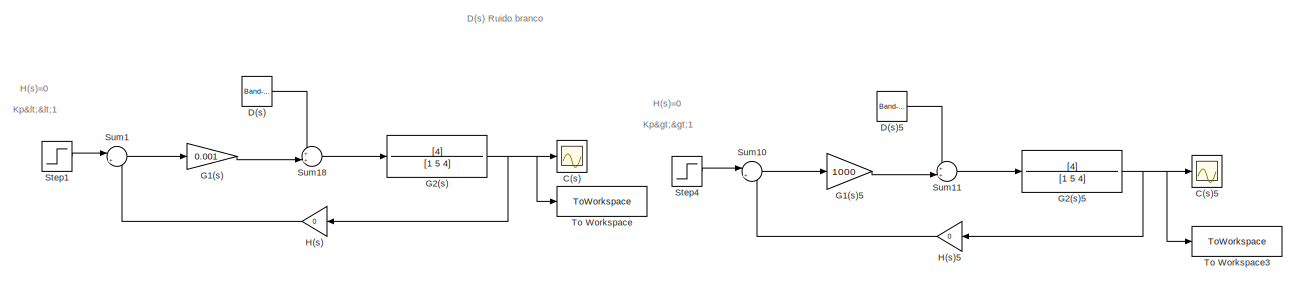
[diagram: root canvas - part 1/4, full width, top band]
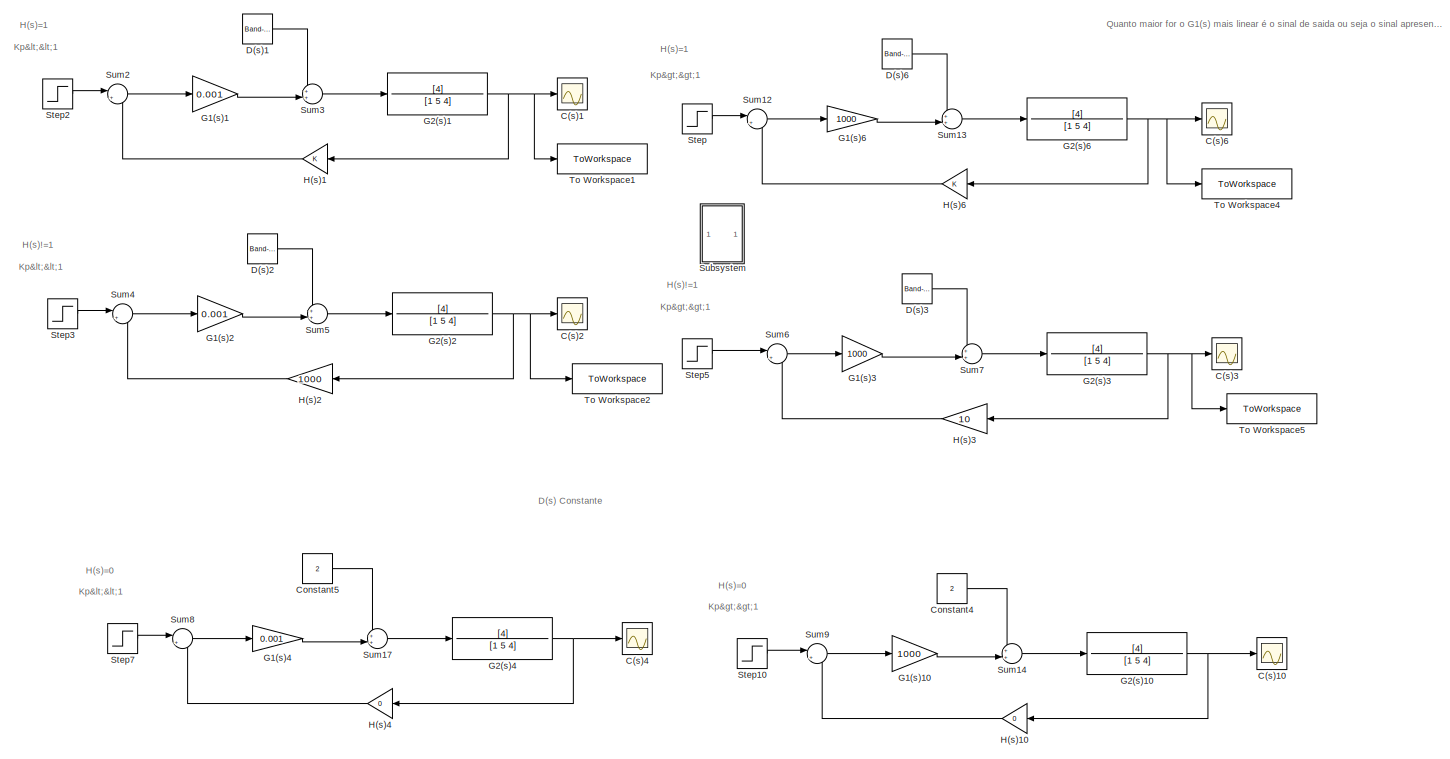
[diagram: root canvas - part 2/4, full width, top band]
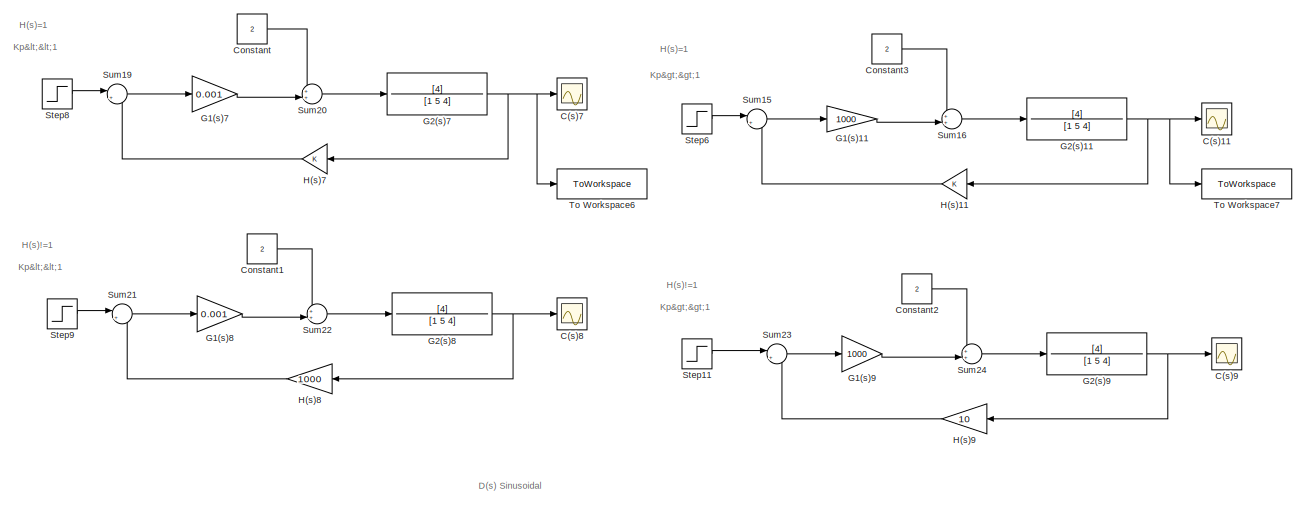
[diagram: root canvas - part 3/4, full width, middle band]
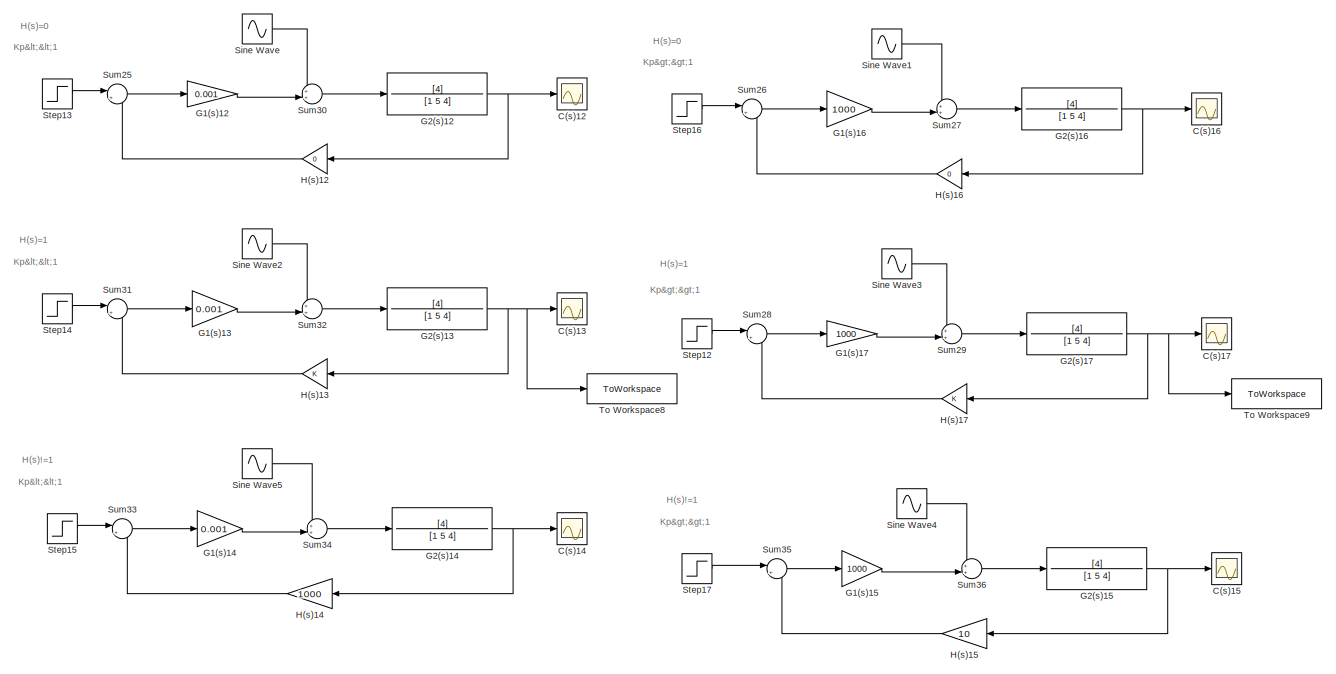
[diagram: root canvas - part 4/4, full width, bottom band]
MODEL slx_2957612d3b44
KIND model
CONFIG AbsTol = auto
CONFIG EnableMultiTasking = off
CONFIG FixedStep = auto
CONFIG MaxStep = auto
CONFIG MinStep = auto
CONFIG RelTol = 1e-3
CONFIG SampleTimeConstraint = Unconstrained
CONFIG SolverName = VariableStepAuto
CONFIG StartTime = 0.0
CONFIG StopTime = 10.0
BLOCK [Scope] C(s)
  Floating = off
  NumInputPorts = 1
  Ports = [1]
  ScopeSpecificationString = Simulink.scopes.TimeScopeBlockCfg('CurrentConfiguration', extmgr.ConfigurationSet(extmgr.Configuration('Core','General UI',true),extmgr.Configuration('Core','Source UI',true),extmgr.Configuration('Sources','WiredSimulink',true,'DataLoggingVariableName','ScopeData1'),extmgr.Configuration('Visuals','Time Domain',true,'SerializedDisplays',{struct('MinYLimReal','-0.19453','MaxYLimReal','0.15381','YLab...<+1397ch>
BLOCK [Scope] C(s)1
  Floating = off
  NumInputPorts = 1
  Ports = [1]
  ScopeSpecificationString = Simulink.scopes.TimeScopeBlockCfg('CurrentConfiguration', extmgr.ConfigurationSet(extmgr.Configuration('Core','General UI',true),extmgr.Configuration('Core','Source UI',true),extmgr.Configuration('Sources','WiredSimulink',true,'DataLoggingVariableName','ScopeData2'),extmgr.Configuration('Visuals','Time Domain',true,'SerializedDisplays',{struct('MinYLimReal','-0.11853','MaxYLimReal','0.07385','YLab...<+1394ch>
BLOCK [Scope] C(s)10
  Floating = off
  NumInputPorts = 1
  Ports = [1]
  ScopeSpecificationString = Simulink.scopes.TimeScopeBlockCfg('CurrentConfiguration', extmgr.ConfigurationSet(extmgr.Configuration('Core','General UI',true),extmgr.Configuration('Core','Source UI',true),extmgr.Configuration('Sources','WiredSimulink',true,'DataLoggingVariableName','ScopeData3'),extmgr.Configuration('Visuals','Time Domain',true,'SerializedDisplays',{struct('MinYLimReal','-125.23127','MaxYLimReal','1127.08139',...<+1411ch>
BLOCK [Scope] C(s)11
  Floating = off
  NumInputPorts = 1
  Ports = [1]
  ScopeSpecificationString = Simulink.scopes.TimeScopeBlockCfg('CurrentConfiguration', extmgr.ConfigurationSet(extmgr.Configuration('Core','General UI',true),extmgr.Configuration('Core','Source UI',true),extmgr.Configuration('Sources','WiredSimulink',true,'DataLoggingVariableName','ScopeData4'),extmgr.Configuration('Visuals','Time Domain',true,'SerializedDisplays',{struct('MinYLimReal','-0.23726','MaxYLimReal','2.13535','YLab...<+1395ch>
BLOCK [Scope] C(s)12
  Floating = off
  NumInputPorts = 1
  Ports = [1]
  ScopeSpecificationString = Simulink.scopes.TimeScopeBlockCfg('CurrentConfiguration', extmgr.ConfigurationSet(extmgr.Configuration('Core','General UI',true),extmgr.Configuration('Core','Source UI',true),extmgr.Configuration('Sources','WiredSimulink',true,'DataLoggingVariableName','ScopeData5'),extmgr.Configuration('Visuals','Time Domain',true,'SerializedDisplays',{struct('MinYLimReal','-0.41052','MaxYLimReal','0.54312','YLab...<+1393ch>
BLOCK [Scope] C(s)13
  Floating = off
  NumInputPorts = 1
  Ports = [1]
  ScopeSpecificationString = Simulink.scopes.TimeScopeBlockCfg('CurrentConfiguration', extmgr.ConfigurationSet(extmgr.Configuration('Core','General UI',true),extmgr.Configuration('Core','Source UI',true),extmgr.Configuration('Sources','WiredSimulink',true,'DataLoggingVariableName','ScopeData6'),extmgr.Configuration('Visuals','Time Domain',true,'SerializedDisplays',{struct('MinYLimReal','-0.41054','MaxYLimReal','0.54299','YLab...<+1395ch>
BLOCK [Scope] C(s)14
  Floating = off
  NumInputPorts = 1
  Ports = [1]
  ScopeSpecificationString = Simulink.scopes.TimeScopeBlockCfg('CurrentConfiguration', extmgr.ConfigurationSet(extmgr.Configuration('Core','General UI',true),extmgr.Configuration('Core','Source UI',true),extmgr.Configuration('Sources','WiredSimulink',true,'DataLoggingVariableName','ScopeData7'),extmgr.Configuration('Visuals','Time Domain',true,'SerializedDisplays',{struct('MinYLimReal','-0.01259','MaxYLimReal','0.11335','YLab...<+1439ch>
BLOCK [Scope] C(s)15
  Floating = off
  NumInputPorts = 1
  Ports = [1]
  ScopeSpecificationString = Simulink.scopes.TimeScopeBlockCfg('CurrentConfiguration', extmgr.ConfigurationSet(extmgr.Configuration('Core','General UI',true),extmgr.Configuration('Core','Source UI',true),extmgr.Configuration('Sources','WiredSimulink',true,'DataLoggingVariableName','ScopeData8'),extmgr.Configuration('Visuals','Time Domain',true,'SerializedDisplays',{struct('MinYLimReal','-0.01259','MaxYLimReal','0.11335','YLab...<+1439ch>
BLOCK [Scope] C(s)16
  Floating = off
  NumInputPorts = 1
  Ports = [1]
  ScopeSpecificationString = Simulink.scopes.TimeScopeBlockCfg('CurrentConfiguration', extmgr.ConfigurationSet(extmgr.Configuration('Core','General UI',true),extmgr.Configuration('Core','Source UI',true),extmgr.Configuration('Sources','WiredSimulink',true,'DataLoggingVariableName','ScopeData9'),extmgr.Configuration('Visuals','Time Domain',true,'SerializedDisplays',{struct('MinYLimReal','-124.95458','MaxYLimReal','1124.5912','...<+1407ch>
BLOCK [Scope] C(s)17
  Floating = off
  NumInputPorts = 1
  Ports = [1]
  ScopeSpecificationString = Simulink.scopes.TimeScopeBlockCfg('CurrentConfiguration', extmgr.ConfigurationSet(extmgr.Configuration('Core','General UI',true),extmgr.Configuration('Core','Source UI',true),extmgr.Configuration('Sources','WiredSimulink',true,'DataLoggingVariableName','ScopeData10'),extmgr.Configuration('Visuals','Time Domain',true,'SerializedDisplays',{struct('MinYLimReal','-0.23723','MaxYLimReal','2.13504','YLa...<+1396ch>
BLOCK [Scope] C(s)2
  Floating = off
  NumInputPorts = 1
  Ports = [1]
  ScopeSpecificationString = Simulink.scopes.TimeScopeBlockCfg('CurrentConfiguration', extmgr.ConfigurationSet(extmgr.Configuration('Core','General UI',true),extmgr.Configuration('Core','Source UI',true),extmgr.Configuration('Sources','WiredSimulink',true,'DataLoggingVariableName','ScopeData11'),extmgr.Configuration('Visuals','Time Domain',true,'SerializedDisplays',{struct('MinYLimReal','-0.01259','MaxYLimReal','0.11335','YLa...<+1439ch>
BLOCK [Scope] C(s)3
  Floating = off
  NumInputPorts = 1
  Ports = [1]
  ScopeSpecificationString = Simulink.scopes.TimeScopeBlockCfg('CurrentConfiguration', extmgr.ConfigurationSet(extmgr.Configuration('Core','General UI',true),extmgr.Configuration('Core','Source UI',true),extmgr.Configuration('Sources','WiredSimulink',true,'DataLoggingVariableName','ScopeData12'),extmgr.Configuration('Visuals','Time Domain',true,'SerializedDisplays',{struct('MinYLimReal','-0.01259','MaxYLimReal','0.11335','YLa...<+1439ch>
BLOCK [Scope] C(s)4
  Floating = off
  NumInputPorts = 1
  Ports = [1]
  ScopeSpecificationString = Simulink.scopes.TimeScopeBlockCfg('CurrentConfiguration', extmgr.ConfigurationSet(extmgr.Configuration('Core','General UI',true),extmgr.Configuration('Core','Source UI',true),extmgr.Configuration('Sources','WiredSimulink',true,'DataLoggingVariableName','ScopeData13'),extmgr.Configuration('Visuals','Time Domain',true,'SerializedDisplays',{struct('MinYLimReal','-0.2501','MaxYLimReal','2.25092','YLab...<+1391ch>
BLOCK [Scope] C(s)5
  Floating = off
  NumInputPorts = 1
  Ports = [1]
  ScopeSpecificationString = Simulink.scopes.TimeScopeBlockCfg('CurrentConfiguration', extmgr.ConfigurationSet(extmgr.Configuration('Core','General UI',true),extmgr.Configuration('Core','Source UI',true),extmgr.Configuration('Sources','WiredSimulink',true,'DataLoggingVariableName','ScopeData14'),extmgr.Configuration('Visuals','Time Domain',true,'SerializedDisplays',{struct('MinYLimReal','-124.96875','MaxYLimReal','1124.71875'...<+1411ch>
BLOCK [Scope] C(s)6
  Floating = off
  NumInputPorts = 1
  Ports = [1]
  ScopeSpecificationString = Simulink.scopes.TimeScopeBlockCfg('CurrentConfiguration', extmgr.ConfigurationSet(extmgr.Configuration('Core','General UI',true),extmgr.Configuration('Core','Source UI',true),extmgr.Configuration('Sources','WiredSimulink',true,'DataLoggingVariableName','ScopeData15'),extmgr.Configuration('Visuals','Time Domain',true,'SerializedDisplays',{struct('MinYLimReal','-0.23893','MaxYLimReal','2.13407','YLa...<+1395ch>
BLOCK [Scope] C(s)7
  Floating = off
  NumInputPorts = 1
  Ports = [1]
  ScopeSpecificationString = Simulink.scopes.TimeScopeBlockCfg('CurrentConfiguration', extmgr.ConfigurationSet(extmgr.Configuration('Core','General UI',true),extmgr.Configuration('Core','Source UI',true),extmgr.Configuration('Sources','WiredSimulink',true,'DataLoggingVariableName','ScopeData16'),extmgr.Configuration('Visuals','Time Domain',true,'SerializedDisplays',{struct('MinYLimReal','-0.24985','MaxYLimReal','2.24868','YLa...<+1395ch>
BLOCK [Scope] C(s)8
  Floating = off
  NumInputPorts = 1
  Ports = [1]
  ScopeSpecificationString = Simulink.scopes.TimeScopeBlockCfg('CurrentConfiguration', extmgr.ConfigurationSet(extmgr.Configuration('Core','General UI',true),extmgr.Configuration('Core','Source UI',true),extmgr.Configuration('Sources','WiredSimulink',true,'DataLoggingVariableName','ScopeData17'),extmgr.Configuration('Visuals','Time Domain',true,'SerializedDisplays',{struct('MinYLimReal','-0.01259','MaxYLimReal','0.11335','YLa...<+1439ch>
BLOCK [Scope] C(s)9
  Floating = off
  NumInputPorts = 1
  Ports = [1]
  ScopeSpecificationString = Simulink.scopes.TimeScopeBlockCfg('CurrentConfiguration', extmgr.ConfigurationSet(extmgr.Configuration('Core','General UI',true),extmgr.Configuration('Core','Source UI',true),extmgr.Configuration('Sources','WiredSimulink',true),extmgr.Configuration('Visuals','Time Domain',true,'SerializedDisplays',{struct('MinYLimReal','-0.01259','MaxYLimReal','0.11335','YLabelReal','','MinYLimMag','0.00000','MaxY...<+1399ch>
BLOCK [Constant] Constant
  Value = 2
BLOCK [Constant] Constant1
  Value = 2
BLOCK [Constant] Constant2
  Value = 2
BLOCK [Constant] Constant3
  Value = 2
BLOCK [Constant] Constant4
  Value = 2
BLOCK [Constant] Constant5
  Value = 2
BLOCK [Reference] D(s)  REF=simulink/Sources/Band-Limited
White Noise
  Ports = [0, 1]
  SourceBlock = simulink/Sources/Band-Limited\nWhite Noise
  SourceProductBaseCode = SL
  SourceType = Band-Limited White Noise.
BLOCK [Reference] D(s)1  REF=simulink/Sources/Band-Limited
White Noise
  Ports = [0, 1]
  SourceBlock = simulink/Sources/Band-Limited\nWhite Noise
  SourceProductBaseCode = SL
  SourceType = Band-Limited White Noise.
BLOCK [Reference] D(s)2  REF=simulink/Sources/Band-Limited
White Noise
  Ports = [0, 1]
  SourceBlock = simulink/Sources/Band-Limited\nWhite Noise
  SourceProductBaseCode = SL
  SourceType = Band-Limited White Noise.
BLOCK [Reference] D(s)3  REF=simulink/Sources/Band-Limited
White Noise
  Ports = [0, 1]
  SourceBlock = simulink/Sources/Band-Limited\nWhite Noise
  SourceProductBaseCode = SL
  SourceType = Band-Limited White Noise.
BLOCK [Reference] D(s)5  REF=simulink/Sources/Band-Limited
White Noise
  Ports = [0, 1]
  SourceBlock = simulink/Sources/Band-Limited\nWhite Noise
  SourceProductBaseCode = SL
  SourceType = Band-Limited White Noise.
BLOCK [Reference] D(s)6  REF=simulink/Sources/Band-Limited
White Noise
  Ports = [0, 1]
  SourceBlock = simulink/Sources/Band-Limited\nWhite Noise
  SourceProductBaseCode = SL
  SourceType = Band-Limited White Noise.
BLOCK [Gain] G1(s)
  Gain = 0.001
BLOCK [Gain] G1(s)1
  Gain = 0.001
BLOCK [Gain] G1(s)10
  Gain = 1000
BLOCK [Gain] G1(s)11
  Gain = 1000
BLOCK [Gain] G1(s)12
  Gain = 0.001
BLOCK [Gain] G1(s)13
  Gain = 0.001
BLOCK [Gain] G1(s)14
  Gain = 0.001
BLOCK [Gain] G1(s)15
  Gain = 1000
BLOCK [Gain] G1(s)16
  Gain = 1000
BLOCK [Gain] G1(s)17
  Gain = 1000
BLOCK [Gain] G1(s)2
  Gain = 0.001
BLOCK [Gain] G1(s)3
  Gain = 1000
BLOCK [Gain] G1(s)4
  Gain = 0.001
BLOCK [Gain] G1(s)5
  Gain = 1000
BLOCK [Gain] G1(s)6
  Gain = 1000
BLOCK [Gain] G1(s)7
  Gain = 0.001
BLOCK [Gain] G1(s)8
  Gain = 0.001
BLOCK [Gain] G1(s)9
  Gain = 1000
BLOCK [TransferFcn] G2(s)
  Denominator = [1 5 4]
  Numerator = [4]
BLOCK [TransferFcn] G2(s)1
  Denominator = [1 5 4]
  Numerator = [4]
BLOCK [TransferFcn] G2(s)10
  Denominator = [1 5 4]
  Numerator = [4]
BLOCK [TransferFcn] G2(s)11
  Denominator = [1 5 4]
  Numerator = [4]
BLOCK [TransferFcn] G2(s)12
  Denominator = [1 5 4]
  Numerator = [4]
BLOCK [TransferFcn] G2(s)13
  Denominator = [1 5 4]
  Numerator = [4]
BLOCK [TransferFcn] G2(s)14
  Denominator = [1 5 4]
  Numerator = [4]
BLOCK [TransferFcn] G2(s)15
  Denominator = [1 5 4]
  Numerator = [4]
BLOCK [TransferFcn] G2(s)16
  Denominator = [1 5 4]
  Numerator = [4]
BLOCK [TransferFcn] G2(s)17
  Denominator = [1 5 4]
  Numerator = [4]
BLOCK [TransferFcn] G2(s)2
  Denominator = [1 5 4]
  Numerator = [4]
BLOCK [TransferFcn] G2(s)3
  Denominator = [1 5 4]
  Numerator = [4]
BLOCK [TransferFcn] G2(s)4
  Denominator = [1 5 4]
  Numerator = [4]
BLOCK [TransferFcn] G2(s)5
  Denominator = [1 5 4]
  Numerator = [4]
BLOCK [TransferFcn] G2(s)6
  Denominator = [1 5 4]
  Numerator = [4]
BLOCK [TransferFcn] G2(s)7
  Denominator = [1 5 4]
  Numerator = [4]
BLOCK [TransferFcn] G2(s)8
  Denominator = [1 5 4]
  Numerator = [4]
BLOCK [TransferFcn] G2(s)9
  Denominator = [1 5 4]
  Numerator = [4]
BLOCK [Gain] H(s)
  Gain = 0
BLOCK [Gain] H(s)1
BLOCK [Gain] H(s)10
  Gain = 0
BLOCK [Gain] H(s)11
BLOCK [Gain] H(s)12
  Gain = 0
BLOCK [Gain] H(s)13
BLOCK [Gain] H(s)14
  Gain = 1000
BLOCK [Gain] H(s)15
  Gain = 10
BLOCK [Gain] H(s)16
  Gain = 0
BLOCK [Gain] H(s)17
BLOCK [Gain] H(s)2
  Gain = 1000
BLOCK [Gain] H(s)3
  Gain = 10
BLOCK [Gain] H(s)4
  Gain = 0
BLOCK [Gain] H(s)5
  Gain = 0
BLOCK [Gain] H(s)6
BLOCK [Gain] H(s)7
BLOCK [Gain] H(s)8
  Gain = 1000
BLOCK [Gain] H(s)9
  Gain = 10
BLOCK [Sin] Sine Wave
  Ports = [0, 1]
  SampleTime = 0
BLOCK [Sin] Sine Wave1
  Ports = [0, 1]
  SampleTime = 0
BLOCK [Sin] Sine Wave2
  Ports = [0, 1]
  SampleTime = 0
BLOCK [Sin] Sine Wave3
  Ports = [0, 1]
  SampleTime = 0
BLOCK [Sin] Sine Wave4
  Ports = [0, 1]
  SampleTime = 0
BLOCK [Sin] Sine Wave5
  Ports = [0, 1]
  SampleTime = 0
BLOCK [Step] Step
  SampleTime = 0
BLOCK [Step] Step1
  SampleTime = 0
BLOCK [Step] Step10
  SampleTime = 0
BLOCK [Step] Step11
  SampleTime = 0
BLOCK [Step] Step12
  SampleTime = 0
BLOCK [Step] Step13
  SampleTime = 0
BLOCK [Step] Step14
  SampleTime = 0
BLOCK [Step] Step15
  SampleTime = 0
BLOCK [Step] Step16
  SampleTime = 0
BLOCK [Step] Step17
  SampleTime = 0
BLOCK [Step] Step2
  SampleTime = 0
BLOCK [Step] Step3
  SampleTime = 0
BLOCK [Step] Step4
  SampleTime = 0
BLOCK [Step] Step5
  SampleTime = 0
BLOCK [Step] Step6
  SampleTime = 0
BLOCK [Step] Step7
  SampleTime = 0
BLOCK [Step] Step8
  SampleTime = 0
BLOCK [Step] Step9
  SampleTime = 0
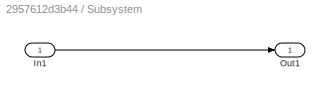
BLOCK [SubSystem] Subsystem
  Ports = [1, 1]
  RequestExecContextInheritance = off
BLOCK [Inport] Subsystem/In1
BLOCK [Outport] Subsystem/Out1
BLOCK [Sum] Sum1
  Inputs = |+-
  Ports = [2, 1]
BLOCK [Sum] Sum10
  Inputs = |+-
  Ports = [2, 1]
BLOCK [Sum] Sum11
  Inputs = ++|
  Ports = [2, 1]
BLOCK [Sum] Sum12
  Inputs = |+-
  Ports = [2, 1]
BLOCK [Sum] Sum13
  Inputs = ++|
  Ports = [2, 1]
BLOCK [Sum] Sum14
  Inputs = ++|
  Ports = [2, 1]
BLOCK [Sum] Sum15
  Inputs = |+-
  Ports = [2, 1]
BLOCK [Sum] Sum16
  Inputs = ++|
  Ports = [2, 1]
BLOCK [Sum] Sum17
  Inputs = ++|
  Ports = [2, 1]
BLOCK [Sum] Sum18
  Inputs = ++|
  Ports = [2, 1]
BLOCK [Sum] Sum19
  Inputs = |+-
  Ports = [2, 1]
BLOCK [Sum] Sum2
  Inputs = |+-
  Ports = [2, 1]
BLOCK [Sum] Sum20
  Inputs = ++|
  Ports = [2, 1]
BLOCK [Sum] Sum21
  Inputs = |+-
  Ports = [2, 1]
BLOCK [Sum] Sum22
  Inputs = ++|
  Ports = [2, 1]
BLOCK [Sum] Sum23
  Inputs = |+-
  Ports = [2, 1]
BLOCK [Sum] Sum24
  Inputs = ++|
  Ports = [2, 1]
BLOCK [Sum] Sum25
  Inputs = |+-
  Ports = [2, 1]
BLOCK [Sum] Sum26
  Inputs = |+-
  Ports = [2, 1]
BLOCK [Sum] Sum27
  Inputs = ++|
  Ports = [2, 1]
BLOCK [Sum] Sum28
  Inputs = |+-
  Ports = [2, 1]
BLOCK [Sum] Sum29
  Inputs = ++|
  Ports = [2, 1]
BLOCK [Sum] Sum3
  Inputs = ++|
  Ports = [2, 1]
BLOCK [Sum] Sum30
  Inputs = ++|
  Ports = [2, 1]
BLOCK [Sum] Sum31
  Inputs = |+-
  Ports = [2, 1]
BLOCK [Sum] Sum32
  Inputs = ++|
  Ports = [2, 1]
BLOCK [Sum] Sum33
  Inputs = |+-
  Ports = [2, 1]
BLOCK [Sum] Sum34
  Inputs = ++|
  Ports = [2, 1]
BLOCK [Sum] Sum35
  Inputs = |+-
  Ports = [2, 1]
BLOCK [Sum] Sum36
  Inputs = ++|
  Ports = [2, 1]
BLOCK [Sum] Sum4
  Inputs = |+-
  Ports = [2, 1]
BLOCK [Sum] Sum5
  Inputs = ++|
  Ports = [2, 1]
BLOCK [Sum] Sum6
  Inputs = |+-
  Ports = [2, 1]
BLOCK [Sum] Sum7
  Inputs = ++|
  Ports = [2, 1]
BLOCK [Sum] Sum8
  Inputs = |+-
  Ports = [2, 1]
BLOCK [Sum] Sum9
  Inputs = |+-
  Ports = [2, 1]
BLOCK [ToWorkspace] To Workspace
  FixptAsFi = on
  MaxDataPoints = inf
  Ports = [1]
  SampleTime = -1
  SaveFormat = Structure With Time
  VariableName = y
BLOCK [ToWorkspace] To Workspace1
  FixptAsFi = on
  MaxDataPoints = inf
  Ports = [1]
  SampleTime = -1
  SaveFormat = Structure With Time
  VariableName = y1
BLOCK [ToWorkspace] To Workspace2
  FixptAsFi = on
  MaxDataPoints = inf
  Ports = [1]
  SampleTime = -1
  SaveFormat = Structure With Time
  VariableName = y2
BLOCK [ToWorkspace] To Workspace3
  FixptAsFi = on
  MaxDataPoints = inf
  Ports = [1]
  SampleTime = -1
  SaveFormat = Structure With Time
  VariableName = y3
BLOCK [ToWorkspace] To Workspace4
  FixptAsFi = on
  MaxDataPoints = inf
  Ports = [1]
  SampleTime = -1
  SaveFormat = Structure With Time
  VariableName = y4
BLOCK [ToWorkspace] To Workspace5
  FixptAsFi = on
  MaxDataPoints = inf
  Ports = [1]
  SampleTime = -1
  SaveFormat = Structure With Time
  VariableName = y5
BLOCK [ToWorkspace] To Workspace6
  FixptAsFi = on
  MaxDataPoints = inf
  Ports = [1]
  SampleTime = -1
  SaveFormat = Structure With Time
  VariableName = y6
BLOCK [ToWorkspace] To Workspace7
  FixptAsFi = on
  MaxDataPoints = inf
  Ports = [1]
  SampleTime = -1
  SaveFormat = Structure With Time
  VariableName = y7
BLOCK [ToWorkspace] To Workspace8
  FixptAsFi = on
  MaxDataPoints = inf
  Ports = [1]
  SampleTime = -1
  SaveFormat = Structure With Time
  VariableName = y8
BLOCK [ToWorkspace] To Workspace9
  FixptAsFi = on
  MaxDataPoints = inf
  Ports = [1]
  SampleTime = -1
  SaveFormat = Structure With Time
  VariableName = y9
ANNOTATION (root): H(s)!=1
ANNOTATION (root): H(s)=0
ANNOTATION (root): H(s)=1
ANNOTATION (root): Kp>>1
ANNOTATION (root): Kp<<1
ANNOTATION (root): Quanto maior for o G1(s) mais linear é o sinal de saida ou seja o sinal apresenta menor distorção.
ANNOTATION (root): D(s) Constante
ANNOTATION (root): D(s) Ruido branco
ANNOTATION (root): D(s) Sinusoidal
LINE Constant1:1 -> Sum22:1
LINE Constant2:1 -> Sum24:1
LINE Constant3:1 -> Sum16:1
LINE Constant4:1 -> Sum14:1
LINE Constant5:1 -> Sum17:1
LINE Constant:1 -> Sum20:1
LINE D(s)1:1 -> Sum3:1
LINE D(s)2:1 -> Sum5:1
LINE D(s)3:1 -> Sum7:1
LINE D(s)5:1 -> Sum11:1
LINE D(s)6:1 -> Sum13:1
LINE D(s):1 -> Sum18:1
LINE G1(s)10:1 -> Sum14:2
LINE G1(s)11:1 -> Sum16:2
LINE G1(s)12:1 -> Sum30:2
LINE G1(s)13:1 -> Sum32:2
LINE G1(s)14:1 -> Sum34:2
LINE G1(s)15:1 -> Sum36:2
LINE G1(s)16:1 -> Sum27:2
LINE G1(s)17:1 -> Sum29:2
LINE G1(s)1:1 -> Sum3:2
LINE G1(s)2:1 -> Sum5:2
LINE G1(s)3:1 -> Sum7:2
LINE G1(s)4:1 -> Sum17:2
LINE G1(s)5:1 -> Sum11:2
LINE G1(s)6:1 -> Sum13:2
LINE G1(s)7:1 -> Sum20:2
LINE G1(s)8:1 -> Sum22:2
LINE G1(s)9:1 -> Sum24:2
LINE G1(s):1 -> Sum18:2
NET G2(s)10:1 -> C(s)10:1, H(s)10:1
NET G2(s)11:1 -> C(s)11:1, H(s)11:1, To Workspace7:1
NET G2(s)12:1 -> C(s)12:1, H(s)12:1
NET G2(s)13:1 -> C(s)13:1, H(s)13:1, To Workspace8:1
NET G2(s)14:1 -> C(s)14:1, H(s)14:1
NET G2(s)15:1 -> C(s)15:1, H(s)15:1
NET G2(s)16:1 -> C(s)16:1, H(s)16:1
NET G2(s)17:1 -> C(s)17:1, H(s)17:1, To Workspace9:1
NET G2(s)1:1 -> C(s)1:1, H(s)1:1, To Workspace1:1
NET G2(s)2:1 -> C(s)2:1, H(s)2:1, To Workspace2:1
NET G2(s)3:1 -> C(s)3:1, H(s)3:1, To Workspace5:1
NET G2(s)4:1 -> C(s)4:1, H(s)4:1
NET G2(s)5:1 -> C(s)5:1, H(s)5:1, To Workspace3:1
NET G2(s)6:1 -> C(s)6:1, H(s)6:1, To Workspace4:1
NET G2(s)7:1 -> C(s)7:1, H(s)7:1, To Workspace6:1
NET G2(s)8:1 -> C(s)8:1, H(s)8:1
NET G2(s)9:1 -> C(s)9:1, H(s)9:1
NET G2(s):1 -> C(s):1, H(s):1, To Workspace:1
LINE H(s)10:1 -> Sum9:2
LINE H(s)11:1 -> Sum15:2
LINE H(s)12:1 -> Sum25:2
LINE H(s)13:1 -> Sum31:2
LINE H(s)14:1 -> Sum33:2
LINE H(s)15:1 -> Sum35:2
LINE H(s)16:1 -> Sum26:2
LINE H(s)17:1 -> Sum28:2
LINE H(s)1:1 -> Sum2:2
LINE H(s)2:1 -> Sum4:2
LINE H(s)3:1 -> Sum6:2
LINE H(s)4:1 -> Sum8:2
LINE H(s)5:1 -> Sum10:2
LINE H(s)6:1 -> Sum12:2
LINE H(s)7:1 -> Sum19:2
LINE H(s)8:1 -> Sum21:2
LINE H(s)9:1 -> Sum23:2
LINE H(s):1 -> Sum1:2
LINE Sine Wave1:1 -> Sum27:1
LINE Sine Wave2:1 -> Sum32:1
LINE Sine Wave3:1 -> Sum29:1
LINE Sine Wave4:1 -> Sum36:1
LINE Sine Wave5:1 -> Sum34:1
LINE Sine Wave:1 -> Sum30:1
LINE Step10:1 -> Sum9:1
LINE Step11:1 -> Sum23:1
LINE Step12:1 -> Sum28:1
LINE Step13:1 -> Sum25:1
LINE Step14:1 -> Sum31:1
LINE Step15:1 -> Sum33:1
LINE Step16:1 -> Sum26:1
LINE Step17:1 -> Sum35:1
LINE Step1:1 -> Sum1:1
LINE Step2:1 -> Sum2:1
LINE Step3:1 -> Sum4:1
LINE Step4:1 -> Sum10:1
LINE Step5:1 -> Sum6:1
LINE Step6:1 -> Sum15:1
LINE Step7:1 -> Sum8:1
LINE Step8:1 -> Sum19:1
LINE Step9:1 -> Sum21:1
LINE Step:1 -> Sum12:1
LINE Subsystem/In1:1 -> Subsystem/Out1:1
LINE Sum10:1 -> G1(s)5:1
LINE Sum11:1 -> G2(s)5:1
LINE Sum12:1 -> G1(s)6:1
LINE Sum13:1 -> G2(s)6:1
LINE Sum14:1 -> G2(s)10:1
LINE Sum15:1 -> G1(s)11:1
LINE Sum16:1 -> G2(s)11:1
LINE Sum17:1 -> G2(s)4:1
LINE Sum18:1 -> G2(s):1
LINE Sum19:1 -> G1(s)7:1
LINE Sum1:1 -> G1(s):1
LINE Sum20:1 -> G2(s)7:1
LINE Sum21:1 -> G1(s)8:1
LINE Sum22:1 -> G2(s)8:1
LINE Sum23:1 -> G1(s)9:1
LINE Sum24:1 -> G2(s)9:1
LINE Sum25:1 -> G1(s)12:1
LINE Sum26:1 -> G1(s)16:1
LINE Sum27:1 -> G2(s)16:1
LINE Sum28:1 -> G1(s)17:1
LINE Sum29:1 -> G2(s)17:1
LINE Sum2:1 -> G1(s)1:1
LINE Sum30:1 -> G2(s)12:1
LINE Sum31:1 -> G1(s)13:1
LINE Sum32:1 -> G2(s)13:1
LINE Sum33:1 -> G1(s)14:1
LINE Sum34:1 -> G2(s)14:1
LINE Sum35:1 -> G1(s)15:1
LINE Sum36:1 -> G2(s)15:1
LINE Sum3:1 -> G2(s)1:1
LINE Sum4:1 -> G1(s)2:1
LINE Sum5:1 -> G2(s)2:1
LINE Sum6:1 -> G1(s)3:1
LINE Sum7:1 -> G2(s)3:1
LINE Sum8:1 -> G1(s)4:1
LINE Sum9:1 -> G1(s)10:1
note: NET lines group one-source signal fan-out (src -> all destinations, sorted); 1:1 wires keep LINE
